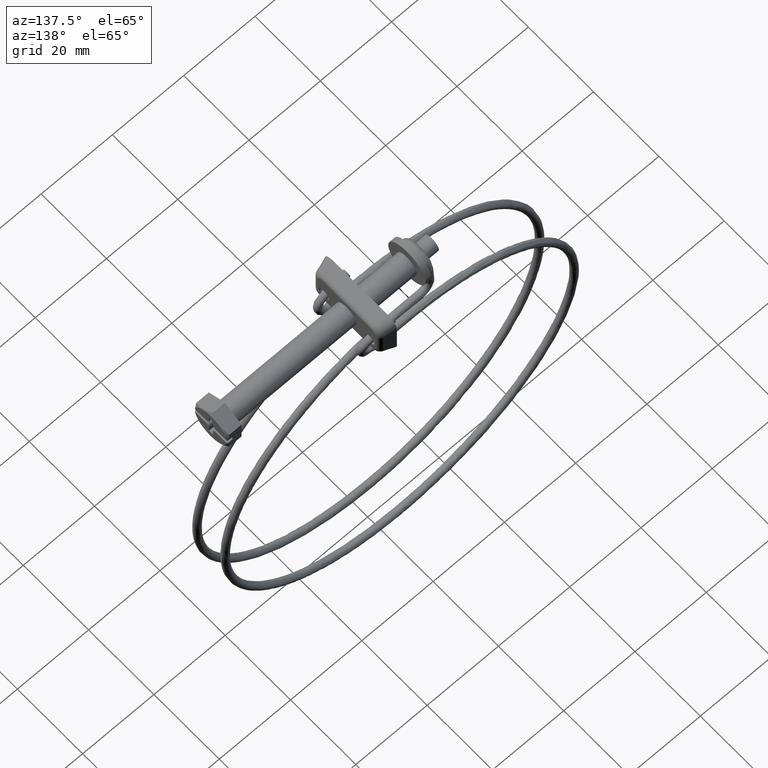
[diagram: clean part render]
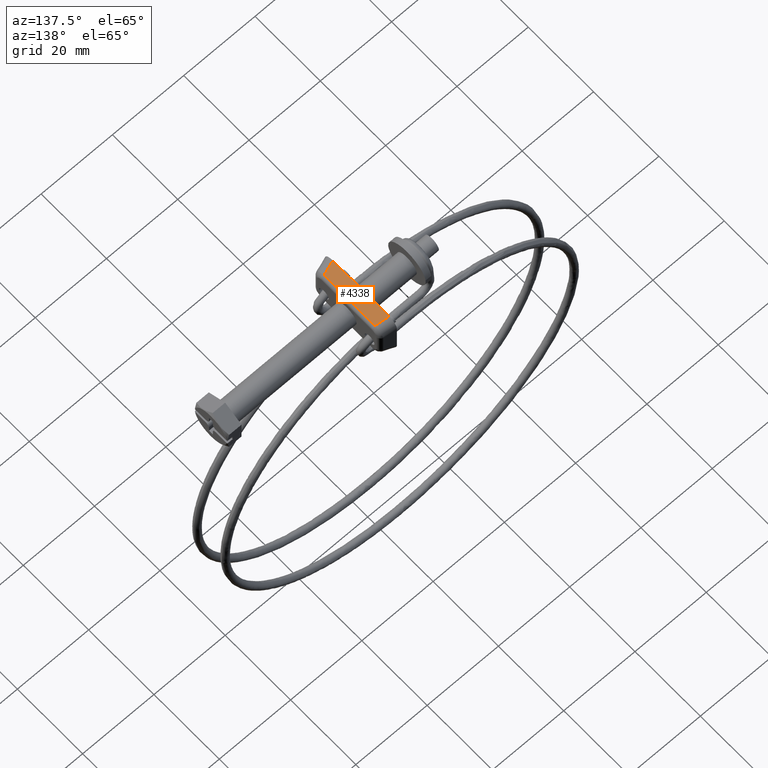
[diagram: same view with one face highlighted and labeled with its STEP entity id]
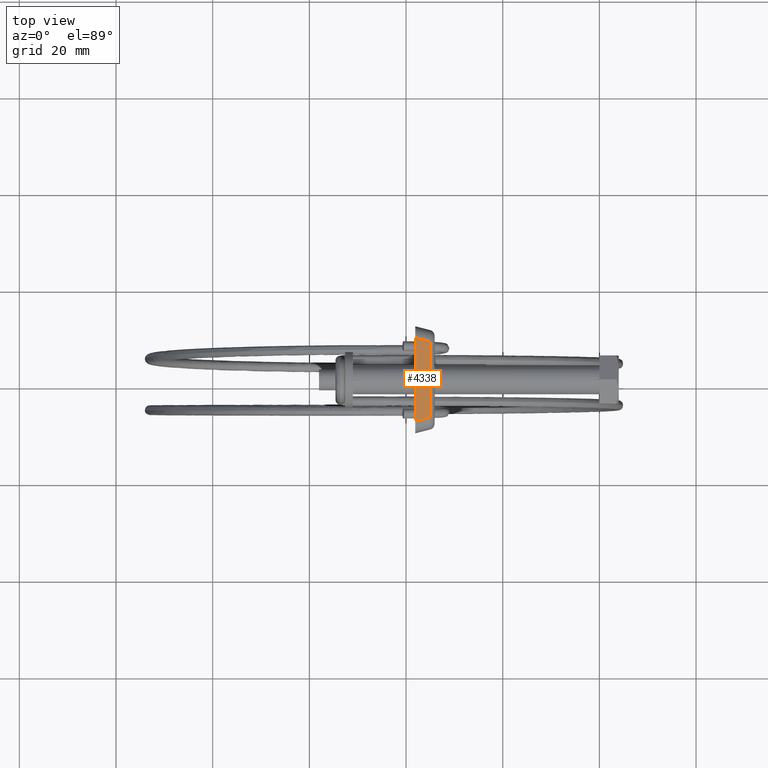
[diagram: same view with one face highlighted and labeled with its STEP entity id]
A machine part, auxiliary view. The second image highlights one B-rep face of the part: STEP entity #4338.
A second angle (top view) of the same face is appended — the face is thin or edge-on in the first view.
In plain terms, the highlighted face is a freeform B-spline surface patch.
Its self-contained STEP definition (entity closure, byte-faithful):
#3450=CARTESIAN_POINT('',(-35.478652022991000,7.837173833659399,5.291994008621761));
#3451=VERTEX_POINT('',#3450);
#3596=CARTESIAN_POINT('',(-35.478652022990950,-7.837173833659441,5.291994008621720));
#3597=VERTEX_POINT('',#3596);
#3619=CARTESIAN_POINT('',(-35.478652022990950,-7.837173833659441,5.291994008621720));
#3620=CARTESIAN_POINT('',(-35.478652022991000,7.837173833659399,5.291994008621761));
#3621=QUASI_UNIFORM_CURVE('',1,(#3619,#3620),.UNSPECIFIED.,.F.,.U.);
#3622=EDGE_CURVE('',#3597,#3451,#3621,.T.);
#3963=CARTESIAN_POINT('',(-38.700000000000003,-8.642511158470031,6.500000000000110));
#3964=VERTEX_POINT('',#3963);
#3965=CARTESIAN_POINT('',(-38.700000000000003,-8.642511158470031,6.500000000000110));
#3966=CARTESIAN_POINT('',(-35.478652022990950,-7.837173833659441,5.291994008621720));
#3967=QUASI_UNIFORM_CURVE('',1,(#3965,#3966),.UNSPECIFIED.,.F.,.U.);
#3968=EDGE_CURVE('',#3964,#3597,#3967,.T.);
#4090=CARTESIAN_POINT('',(-38.700000000000003,8.642511158470031,6.500000000000110));
#4091=VERTEX_POINT('',#4090);
#4092=CARTESIAN_POINT('',(-35.478652022991000,7.837173833659399,5.291994008621761));
#4093=CARTESIAN_POINT('',(-38.700000000000003,8.642511158470031,6.500000000000110));
#4094=QUASI_UNIFORM_CURVE('',1,(#4092,#4093),.UNSPECIFIED.,.F.,.U.);
#4095=EDGE_CURVE('',#3451,#4091,#4094,.T.);
#4252=CARTESIAN_POINT('',(-38.700000000000003,-8.642511158470031,6.500000000000110));
#4253=CARTESIAN_POINT('',(-38.700000000000003,8.642511158470031,6.500000000000110));
#4254=QUASI_UNIFORM_CURVE('',1,(#4252,#4253),.UNSPECIFIED.,.F.,.U.);
#4255=EDGE_CURVE('',#3964,#4091,#4254,.T.);
#4327=CARTESIAN_POINT('',(-38.860907350114417,-9.505898314218301,6.560339231317746));
#4328=CARTESIAN_POINT('',(-35.317746528101807,-9.505898314218301,5.231654473013151));
#4329=CARTESIAN_POINT('',(-38.860907350114417,9.505898468758446,6.560339231317746));
#4330=CARTESIAN_POINT('',(-35.317746528101807,9.505898468758446,5.231654473013151));
#4331=B_SPLINE_SURFACE_WITH_KNOTS('',1,1,((#4327,#4329),(#4328,#4330)),.UNSPECIFIED.,.F.,.F.,.U.,(2,2),(2,2),(0.0,3.784097223591911),(0.0,19.011796782976749),.UNSPECIFIED.);
#4332=ORIENTED_EDGE('',*,*,#3968,.T.);
#4333=ORIENTED_EDGE('',*,*,#3622,.T.);
#4334=ORIENTED_EDGE('',*,*,#4095,.T.);
#4335=ORIENTED_EDGE('',*,*,#4255,.F.);
#4336=EDGE_LOOP('',(#4332,#4333,#4334,#4335));
#4337=FACE_OUTER_BOUND('',#4336,.T.);
#4338=ADVANCED_FACE('',(#4337),#4331,.T.);